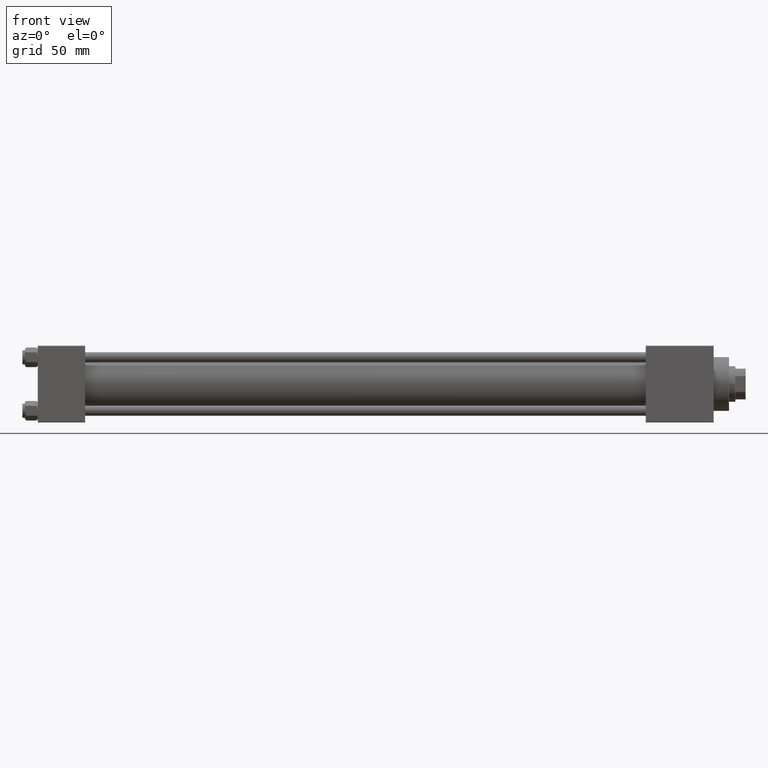
[diagram: clean part render]
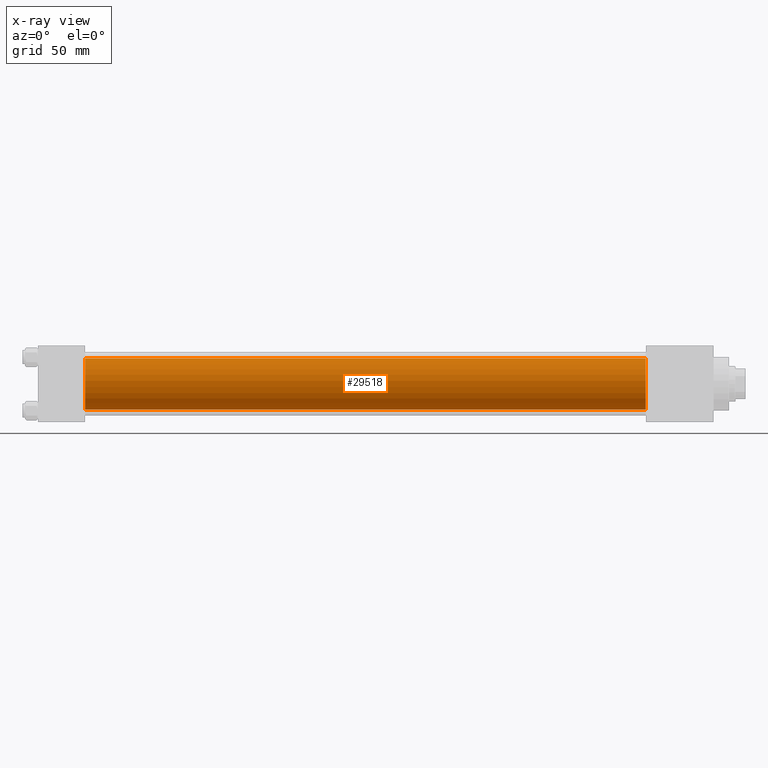
[diagram: x-ray — body ghosted, one internal face saturated and labeled with its STEP entity id]
A machine part, front view, then the same camera in x-ray: the body is ghosted and one INTERNAL B-rep face — a face not visible from any outside direction — is saturated and labeled: STEP entity #29518.
In plain terms, the highlighted cylindrical surface (edge-blend (fillet) strip) has radius 20 mm, axis along (-1, -0, -0).
Its self-contained STEP definition (entity closure, byte-faithful):
#399 = EDGE_LOOP ( 'NONE', ( #32657, #15028, #28281, #13767 ) ) ;
#452 = DIRECTION ( 'NONE',  ( -1.000000000000000000, -0.000000000000000000, -0.000000000000000000 ) ) ;
#3275 = CARTESIAN_POINT ( 'NONE',  ( 37.00000000000000000, -1.527916156705042519E-16, -20.00000000000000000 ) ) ;
#3712 = CIRCLE ( 'NONE', #32744, 20.00000000000000000 ) ;
#5533 = VERTEX_POINT ( 'NONE', #38493 ) ;
#7603 = CARTESIAN_POINT ( 'NONE',  ( 475.0000000000000000, -1.527916156705042519E-16, -20.00000000000000000 ) ) ;
#9358 = DIRECTION ( 'NONE',  ( 0.000000000000000000, 0.000000000000000000, -1.000000000000000000 ) ) ;
#9622 = DIRECTION ( 'NONE',  ( 1.000000000000000000, 0.000000000000000000, 0.000000000000000000 ) ) ;
#13767 = ORIENTED_EDGE ( 'NONE', *, *, #27387, .F. ) ;
#14005 = VERTEX_POINT ( 'NONE', #17571 ) ;
#14678 = CARTESIAN_POINT ( 'NONE',  ( 475.0000000000000000, -2.602085213965210642E-15, 20.00000000000000000 ) ) ;
#15028 = ORIENTED_EDGE ( 'NONE', *, *, #43807, .T. ) ;
#15296 = DIRECTION ( 'NONE',  ( 0.000000000000000000, 0.000000000000000000, 1.000000000000000000 ) ) ;
#17571 = CARTESIAN_POINT ( 'NONE',  ( 475.0000000000000000, -2.602085213965210642E-15, 20.00000000000000000 ) ) ;
#21150 = EDGE_CURVE ( 'NONE', #14005, #5533, #3712, .T. ) ;
#21856 = EDGE_CURVE ( 'NONE', #32650, #33547, #22823, .T. ) ;
#22402 = DIRECTION ( 'NONE',  ( 1.000000000000000000, 0.000000000000000000, 0.000000000000000000 ) ) ;
#22823 = CIRCLE ( 'NONE', #39428, 20.00000000000000000 ) ;
#25512 = CARTESIAN_POINT ( 'NONE',  ( 475.0000000000000000, -2.602085213965210642E-15, 0.000000000000000000 ) ) ;
#26542 = DIRECTION ( 'NONE',  ( 0.000000000000000000, 0.000000000000000000, -1.000000000000000000 ) ) ;
#27387 = EDGE_CURVE ( 'NONE', #14005, #32650, #35592, .T. ) ;
#28281 = ORIENTED_EDGE ( 'NONE', *, *, #21856, .F. ) ;
#29518 = ADVANCED_FACE ( 'NONE', ( #31908 ), #50867, .F. ) ;
#31693 = DIRECTION ( 'NONE',  ( -1.000000000000000000, -0.000000000000000000, -0.000000000000000000 ) ) ;
#31908 = FACE_OUTER_BOUND ( 'NONE', #399, .T. ) ;
#32650 = VERTEX_POINT ( 'NONE', #45711 ) ;
#32657 = ORIENTED_EDGE ( 'NONE', *, *, #21150, .T. ) ;
#32744 = AXIS2_PLACEMENT_3D ( 'NONE', #25512, #22402, #26542 ) ;
#33547 = VERTEX_POINT ( 'NONE', #3275 ) ;
#35432 = DIRECTION ( 'NONE',  ( -1.000000000000000000, -0.000000000000000000, -0.000000000000000000 ) ) ;
#35592 = LINE ( 'NONE', #14678, #49541 ) ;
#38493 = CARTESIAN_POINT ( 'NONE',  ( 475.0000000000000000, -1.527916156705042519E-16, -20.00000000000000000 ) ) ;
#39428 = AXIS2_PLACEMENT_3D ( 'NONE', #45981, #9622, #9358 ) ;
#43807 = EDGE_CURVE ( 'NONE', #5533, #33547, #46332, .T. ) ;
#45711 = CARTESIAN_POINT ( 'NONE',  ( 37.00000000000000000, -2.602085213965210642E-15, 20.00000000000000000 ) ) ;
#45981 = CARTESIAN_POINT ( 'NONE',  ( 37.00000000000000000, -2.602085213965210642E-15, 0.000000000000000000 ) ) ;
#46332 = LINE ( 'NONE', #7603, #49974 ) ;
#49541 = VECTOR ( 'NONE', #31693, 1000.000000000000000 ) ;
#49610 = AXIS2_PLACEMENT_3D ( 'NONE', #51128, #452, #15296 ) ;
#49974 = VECTOR ( 'NONE', #35432, 1000.000000000000000 ) ;
#50867 = CYLINDRICAL_SURFACE ( 'NONE', #49610, 20.00000000000000000 ) ;
#51128 = CARTESIAN_POINT ( 'NONE',  ( 475.0000000000000000, -2.602085213965210642E-15, 0.000000000000000000 ) ) ;